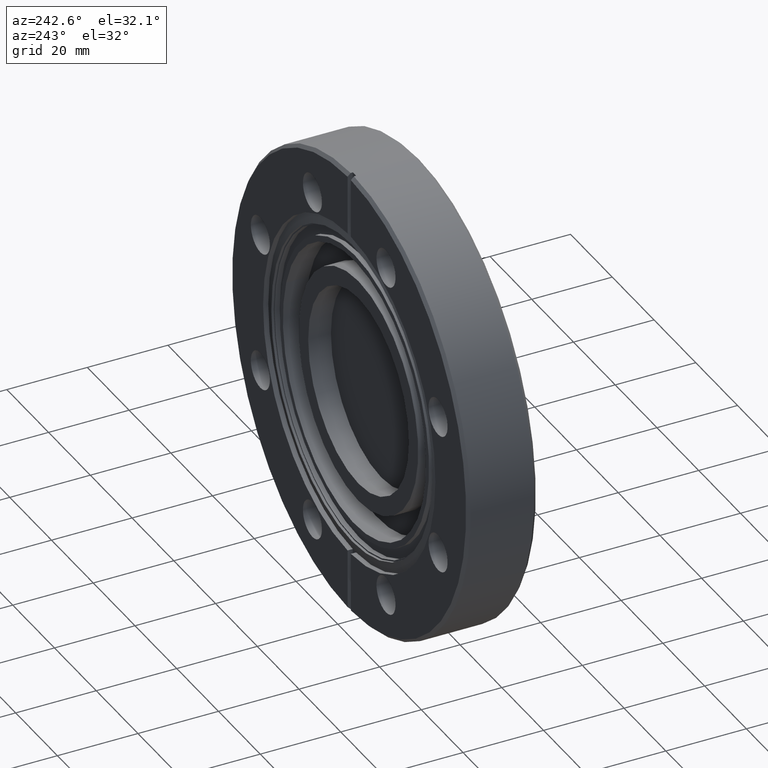
[diagram: clean part render]
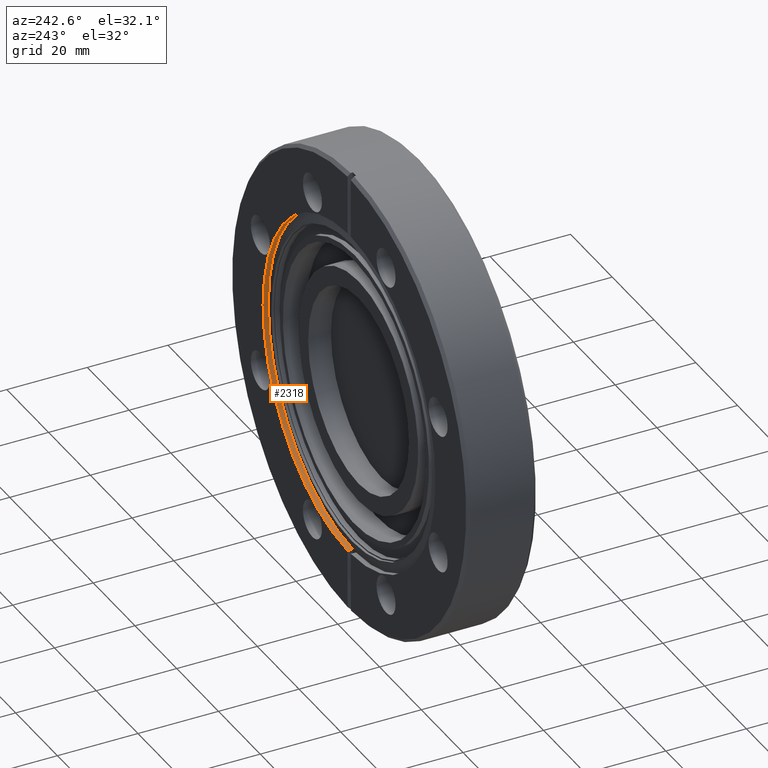
[diagram: same view with one face highlighted and labeled with its STEP entity id]
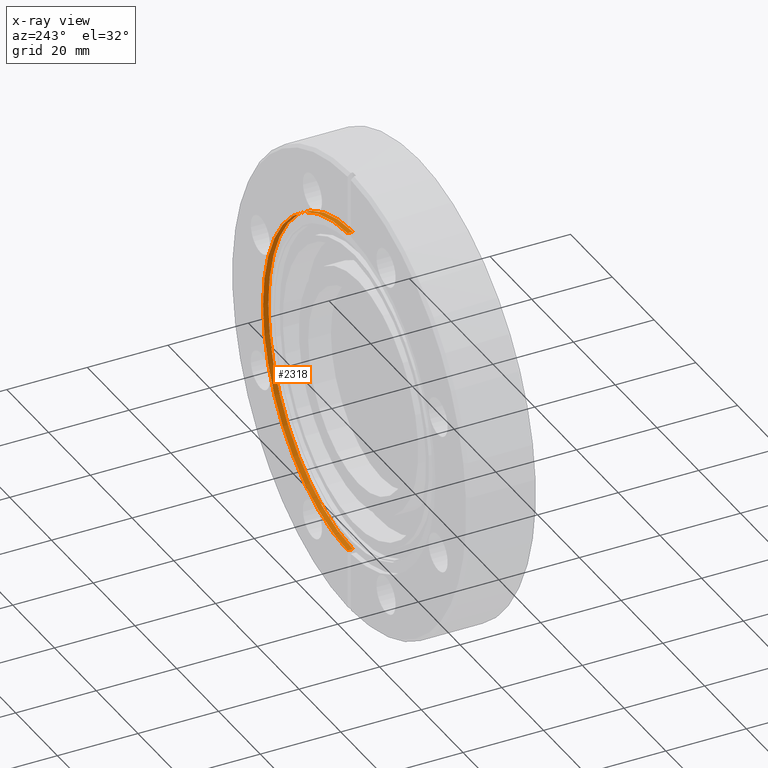
[diagram: x-ray of the same camera — body ghosted, the highlighted face saturated]
A machine part, auxiliary view. The second image highlights one B-rep face of the part: STEP entity #2318.
The next image is the same camera in x-ray: the body ghosted, the highlighted face saturated — about 0% of this face is hidden behind the body in this view.
In plain terms, the highlighted cylindrical surface (partial cylindrical patch) has radius 41.275 mm, axis along (-0, 1, -0).
Its self-contained STEP definition (entity closure, byte-faithful):
#42 = CARTESIAN_POINT ( 'NONE',  ( 0.03099999999999988900, 0.6250000000000000000, 1.624704280784660100 ) ) ;
#85 = CARTESIAN_POINT ( 'NONE',  ( 0.03099999999999944500, 0.6250000000000000000, -1.624704280784660100 ) ) ;
#154 = DIRECTION ( 'NONE',  ( 0.0000000000000000000, 0.0000000000000000000, 1.000000000000000000 ) ) ;
#156 = CARTESIAN_POINT ( 'NONE',  ( -1.044704384978681700E-018, 0.6250000000000000000, -2.547736418603577800E-017 ) ) ;
#161 = DIRECTION ( 'NONE',  ( -0.0000000000000000000, 1.000000000000000000, -0.0000000000000000000 ) ) ;
#438 = VECTOR ( 'NONE', #735, 39.37007874015748100 ) ;
#440 = CIRCLE ( 'NONE', #445, 1.625000000000000000 ) ;
#445 = AXIS2_PLACEMENT_3D ( 'NONE', #729, #728, #727 ) ;
#515 = AXIS2_PLACEMENT_3D ( 'NONE', #156, #161, #154 ) ;
#624 = VECTOR ( 'NONE', #739, 39.37007874015748100 ) ;
#632 = CIRCLE ( 'NONE', #515, 1.625000000000000000 ) ;
#700 = LINE ( 'NONE', #732, #624 ) ;
#727 = DIRECTION ( 'NONE',  ( 0.0000000000000000000, 0.0000000000000000000, 1.000000000000000000 ) ) ;
#728 = DIRECTION ( 'NONE',  ( -0.0000000000000000000, 1.000000000000000000, -0.0000000000000000000 ) ) ;
#729 = CARTESIAN_POINT ( 'NONE',  ( -1.044704384978681700E-018, 0.6759999999999999300, -2.547736418603577800E-017 ) ) ;
#732 = CARTESIAN_POINT ( 'NONE',  ( 0.03099999999999944500, 0.6250000000000000000, -1.624704280784660100 ) ) ;
#735 = DIRECTION ( 'NONE',  ( -0.0000000000000000000, 1.000000000000000000, -0.0000000000000000000 ) ) ;
#736 = CARTESIAN_POINT ( 'NONE',  ( 0.03099999999999988900, 0.6250000000000000000, 1.624704280784660100 ) ) ;
#738 = LINE ( 'NONE', #736, #438 ) ;
#739 = DIRECTION ( 'NONE',  ( -0.0000000000000000000, 1.000000000000000000, -0.0000000000000000000 ) ) ;
#868 = VERTEX_POINT ( 'NONE', #42 ) ;
#906 = VERTEX_POINT ( 'NONE', #85 ) ;
#1019 = VERTEX_POINT ( 'NONE', #1894 ) ;
#1101 = VERTEX_POINT ( 'NONE', #1838 ) ;
#1208 = EDGE_CURVE ( 'NONE', #906, #1019, #700, .T. ) ;
#1209 = EDGE_CURVE ( 'NONE', #868, #1101, #738, .T. ) ;
#1211 = EDGE_CURVE ( 'NONE', #1101, #1019, #440, .T. ) ;
#1529 = DIRECTION ( 'NONE',  ( 0.0000000000000000000, 0.0000000000000000000, 1.000000000000000000 ) ) ;
#1531 = DIRECTION ( 'NONE',  ( -0.0000000000000000000, 1.000000000000000000, -0.0000000000000000000 ) ) ;
#1532 = CARTESIAN_POINT ( 'NONE',  ( -1.044704384978681700E-018, 0.6759999999999999300, -2.547736418603577800E-017 ) ) ;
#1533 = CYLINDRICAL_SURFACE ( 'NONE', #2167, 1.625000000000000000 ) ;
#1542 = FACE_OUTER_BOUND ( 'NONE', #2446, .T. ) ;
#1838 = CARTESIAN_POINT ( 'NONE',  ( 0.03099999999999988900, 0.6759999999999999300, 1.624704280784660100 ) ) ;
#1894 = CARTESIAN_POINT ( 'NONE',  ( 0.03099999999999944500, 0.6759999999999999300, -1.624704280784660100 ) ) ;
#2088 = EDGE_CURVE ( 'NONE', #868, #906, #632, .T. ) ;
#2167 = AXIS2_PLACEMENT_3D ( 'NONE', #1532, #1531, #1529 ) ;
#2318 = ADVANCED_FACE ( 'NONE', ( #1542 ), #1533, .F. ) ;
#2446 = EDGE_LOOP ( 'NONE', ( #2487, #2474, #2479, #2543 ) ) ;
#2474 = ORIENTED_EDGE ( 'NONE', *, *, #2088, .F. ) ;
#2479 = ORIENTED_EDGE ( 'NONE', *, *, #1209, .T. ) ;
#2487 = ORIENTED_EDGE ( 'NONE', *, *, #1208, .F. ) ;
#2543 = ORIENTED_EDGE ( 'NONE', *, *, #1211, .T. ) ;